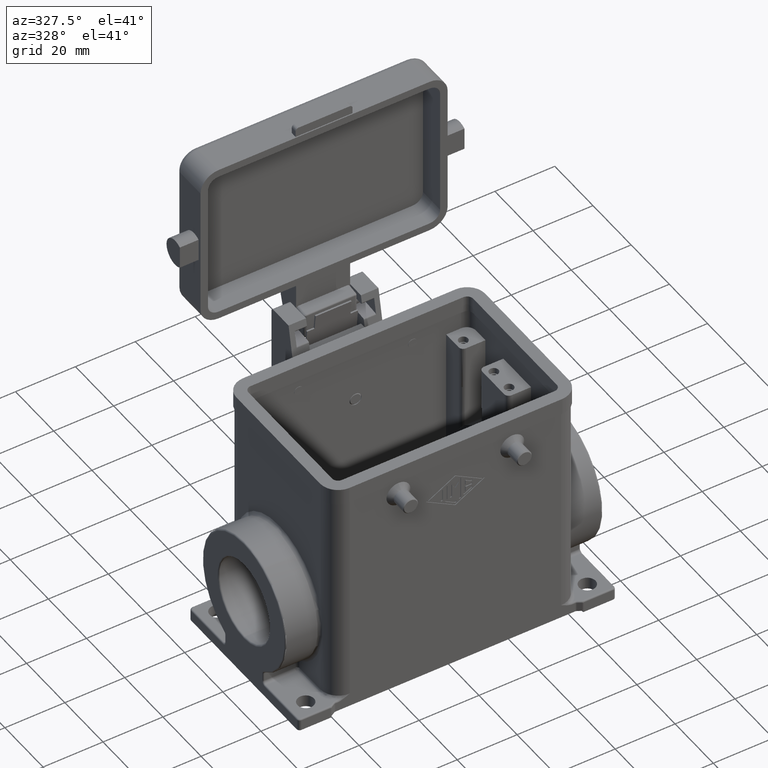
[diagram: clean part render]
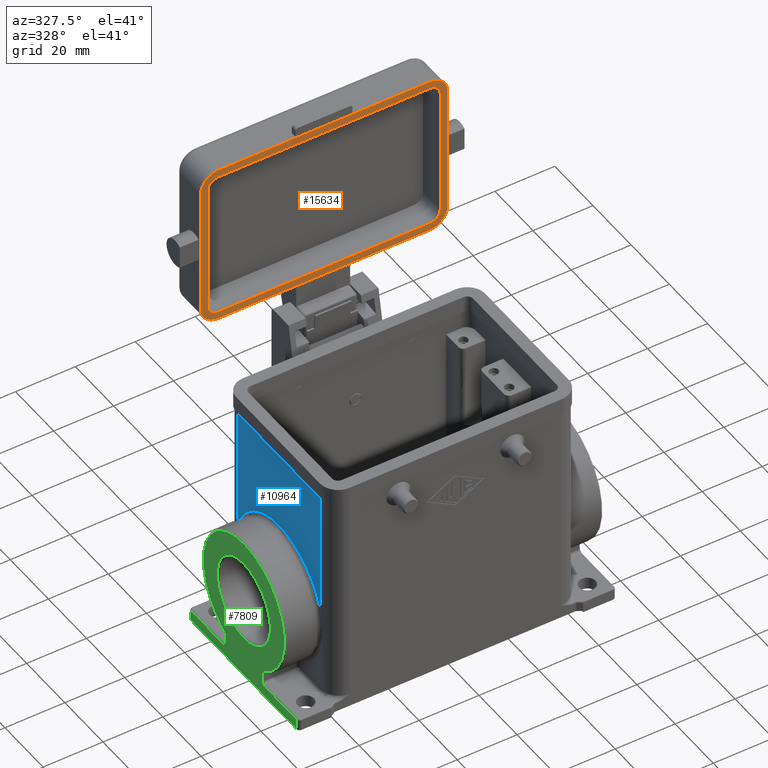
[diagram: same view with three faces highlighted in distinct colors, each labeled with its STEP entity id]
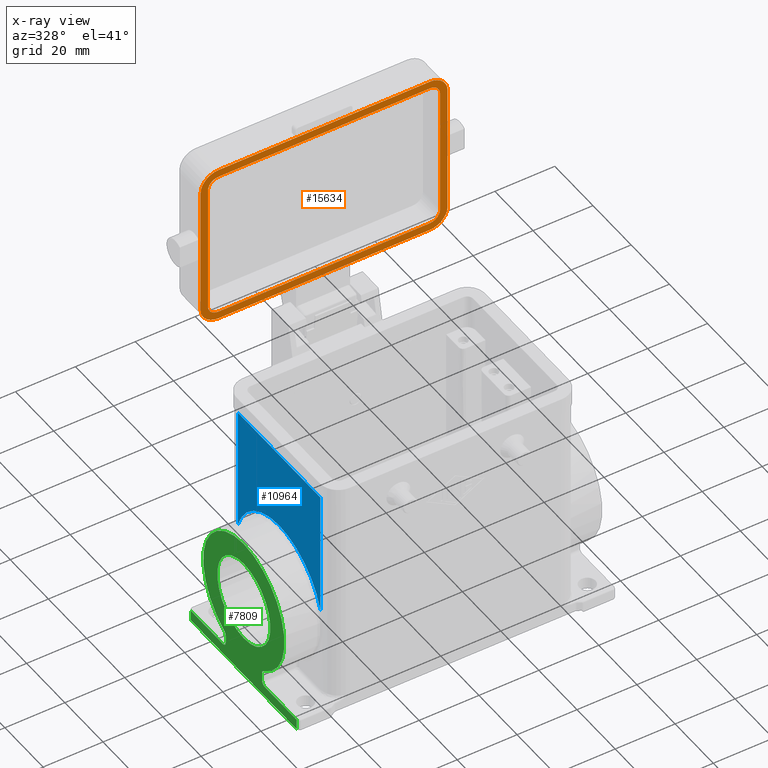
[diagram: x-ray of the same camera — body ghosted, the three highlighted faces saturated]
A machine part, auxiliary view with three faces highlighted in distinct colors.
The next image is the same camera in x-ray (body ghosted, the three faces saturated) — at least one of them is partly hidden behind the body in this view.
Their STEP definitions:

[orange] entity #15634 — the highlighted planar face has unit normal (0, 1, 0).
#14932=CARTESIAN_POINT('',(35.250000000000000,41.150000000000006,41.999999999999993));
#14933=VERTEX_POINT('',#14932);
#14940=CARTESIAN_POINT('',(-35.250000000000000,41.150000000000006,41.999999999999993));
#14941=VERTEX_POINT('',#14940);
#14942=CARTESIAN_POINT('',(-35.250000000000000,41.150000000000006,41.999999999999993));
#14943=DIRECTION('',(1.0,0.0,0.0));
#14944=VECTOR('',#14943,70.500000000000000);
#14945=LINE('',#14942,#14944);
#14946=EDGE_CURVE('',#14941,#14933,#14945,.T.);
#15168=CARTESIAN_POINT('',(41.250000000000000,41.150000000000006,47.999999999999986));
#15169=VERTEX_POINT('',#15168);
#15176=CARTESIAN_POINT('',(35.250000000000000,41.150000000000006,47.999999999999986));
#15177=DIRECTION('',(0.0,-1.0,0.0));
#15178=DIRECTION('',(-1.0,0.0,0.0));
#15179=AXIS2_PLACEMENT_3D('',#15176,#15177,#15178);
#15180=CIRCLE('',#15179,6.000000000000014);
#15181=EDGE_CURVE('',#14933,#15169,#15180,.T.);
#15193=CARTESIAN_POINT('',(41.250000000000000,41.150000000000006,91.299999999999983));
#15194=VERTEX_POINT('',#15193);
#15201=CARTESIAN_POINT('',(41.250000000000000,41.150000000000006,47.999999999999986));
#15202=DIRECTION('',(0.0,0.0,1.0));
#15203=VECTOR('',#15202,43.299999999999997);
#15204=LINE('',#15201,#15203);
#15205=EDGE_CURVE('',#15169,#15194,#15204,.T.);
#15248=CARTESIAN_POINT('',(35.250000000000000,41.150000000000006,44.499999999999993));
#15249=VERTEX_POINT('',#15248);
#15256=CARTESIAN_POINT('',(38.749999999999986,41.150000000000006,47.999999999999986));
#15257=VERTEX_POINT('',#15256);
#15258=CARTESIAN_POINT('',(35.250000000000000,41.150000000000013,47.999999999999986));
#15259=DIRECTION('',(0.0,1.0,0.0));
#15260=DIRECTION('',(-1.0,0.0,0.0));
#15261=AXIS2_PLACEMENT_3D('',#15258,#15259,#15260);
#15262=CIRCLE('',#15261,3.500000000000001);
#15263=EDGE_CURVE('',#15257,#15249,#15262,.T.);
#15287=CARTESIAN_POINT('',(-35.250000000000000,41.150000000000006,44.499999999999993));
#15288=VERTEX_POINT('',#15287);
#15295=CARTESIAN_POINT('',(35.250000000000000,41.150000000000006,44.499999999999993));
#15296=DIRECTION('',(-1.0,0.0,0.0));
#15297=VECTOR('',#15296,70.500000000000000);
#15298=LINE('',#15295,#15297);
#15299=EDGE_CURVE('',#15249,#15288,#15298,.T.);
#15319=CARTESIAN_POINT('',(-38.750000000000007,41.150000000000006,47.999999999999986));
#15320=VERTEX_POINT('',#15319);
#15327=CARTESIAN_POINT('',(-35.250000000000000,41.150000000000013,47.999999999999986));
#15328=DIRECTION('',(0.0,1.0,0.0));
#15329=DIRECTION('',(0.0,0.0,1.0));
#15330=AXIS2_PLACEMENT_3D('',#15327,#15328,#15329);
#15331=CIRCLE('',#15330,3.500000000000000);
#15332=EDGE_CURVE('',#15288,#15320,#15331,.T.);
#15351=CARTESIAN_POINT('',(-38.750000000000007,41.150000000000006,91.299999999999983));
#15352=VERTEX_POINT('',#15351);
#15359=CARTESIAN_POINT('',(-38.750000000000007,41.150000000000006,47.999999999999986));
#15360=DIRECTION('',(0.0,0.0,1.0));
#15361=VECTOR('',#15360,43.299999999999997);
#15362=LINE('',#15359,#15361);
#15363=EDGE_CURVE('',#15320,#15352,#15362,.T.);
#15383=CARTESIAN_POINT('',(38.749999999999972,41.150000000000006,91.299999999999983));
#15384=VERTEX_POINT('',#15383);
#15385=CARTESIAN_POINT('',(38.749999999999972,41.150000000000006,91.299999999999983));
#15386=DIRECTION('',(0.0,0.0,-1.0));
#15387=VECTOR('',#15386,43.299999999999997);
#15388=LINE('',#15385,#15387);
#15389=EDGE_CURVE('',#15384,#15257,#15388,.T.);
#15415=CARTESIAN_POINT('',(35.250000000000000,41.150000000000006,94.799999999999983));
#15416=VERTEX_POINT('',#15415);
#15417=CARTESIAN_POINT('',(35.250000000000000,41.150000000000013,91.299999999999983));
#15418=DIRECTION('',(0.0,1.0,0.0));
#15419=DIRECTION('',(0.0,0.0,-1.0));
#15420=AXIS2_PLACEMENT_3D('',#15417,#15418,#15419);
#15421=CIRCLE('',#15420,3.500000000000000);
#15422=EDGE_CURVE('',#15416,#15384,#15421,.T.);
#15447=CARTESIAN_POINT('',(-35.250000000000000,41.150000000000006,94.799999999999983));
#15448=VERTEX_POINT('',#15447);
#15449=CARTESIAN_POINT('',(-35.250000000000000,41.150000000000006,94.799999999999983));
#15450=DIRECTION('',(1.0,0.0,0.0));
#15451=VECTOR('',#15450,70.500000000000000);
#15452=LINE('',#15449,#15451);
#15453=EDGE_CURVE('',#15448,#15416,#15452,.T.);
#15477=CARTESIAN_POINT('',(-35.250000000000000,41.150000000000013,91.299999999999983));
#15478=DIRECTION('',(0.0,1.0,0.0));
#15479=DIRECTION('',(1.0,0.0,0.0));
#15480=AXIS2_PLACEMENT_3D('',#15477,#15478,#15479);
#15481=CIRCLE('',#15480,3.500000000000001);
#15482=EDGE_CURVE('',#15352,#15448,#15481,.T.);
#15494=CARTESIAN_POINT('',(35.250000000000000,41.150000000000006,97.299999999999983));
#15495=VERTEX_POINT('',#15494);
#15502=CARTESIAN_POINT('',(35.250000000000000,41.150000000000006,91.299999999999983));
#15503=DIRECTION('',(0.0,-1.0,0.0));
#15504=DIRECTION('',(0.0,0.0,-1.0));
#15505=AXIS2_PLACEMENT_3D('',#15502,#15503,#15504);
#15506=CIRCLE('',#15505,5.999999999999996);
#15507=EDGE_CURVE('',#15194,#15495,#15506,.T.);
#15519=CARTESIAN_POINT('',(-35.250000000000000,41.150000000000006,97.299999999999983));
#15520=VERTEX_POINT('',#15519);
#15527=CARTESIAN_POINT('',(35.250000000000000,41.150000000000006,97.299999999999983));
#15528=DIRECTION('',(-1.0,0.0,0.0));
#15529=VECTOR('',#15528,70.500000000000000);
#15530=LINE('',#15527,#15529);
#15531=EDGE_CURVE('',#15495,#15520,#15530,.T.);
#15543=CARTESIAN_POINT('',(-41.250000000000000,41.150000000000006,91.299999999999983));
#15544=VERTEX_POINT('',#15543);
#15551=CARTESIAN_POINT('',(-35.250000000000000,41.150000000000006,91.299999999999983));
#15552=DIRECTION('',(0.0,-1.0,0.0));
#15553=DIRECTION('',(1.0,0.0,0.0));
#15554=AXIS2_PLACEMENT_3D('',#15551,#15552,#15553);
#15555=CIRCLE('',#15554,6.000000000000005);
#15556=EDGE_CURVE('',#15520,#15544,#15555,.T.);
#15568=CARTESIAN_POINT('',(-41.250000000000000,41.150000000000006,47.999999999999986));
#15569=VERTEX_POINT('',#15568);
#15576=CARTESIAN_POINT('',(-41.250000000000000,41.150000000000006,91.299999999999983));
#15577=DIRECTION('',(0.0,0.0,-1.0));
#15578=VECTOR('',#15577,43.299999999999997);
#15579=LINE('',#15576,#15578);
#15580=EDGE_CURVE('',#15544,#15569,#15579,.T.);
#15598=CARTESIAN_POINT('',(-35.250000000000000,41.150000000000006,47.999999999999986));
#15599=DIRECTION('',(0.0,-1.0,0.0));
#15600=DIRECTION('',(0.0,0.0,1.0));
#15601=AXIS2_PLACEMENT_3D('',#15598,#15599,#15600);
#15602=CIRCLE('',#15601,6.000000000000005);
#15603=EDGE_CURVE('',#15569,#14941,#15602,.T.);
#15609=CARTESIAN_POINT('',(0.0,41.150000000000013,69.650000000000006));
#15610=DIRECTION('',(0.0,1.0,0.0));
#15611=DIRECTION('',(0.0,0.0,1.0));
#15612=AXIS2_PLACEMENT_3D('',#15609,#15610,#15611);
#15613=PLANE('',#15612);
#15614=ORIENTED_EDGE('',*,*,#15603,.T.);
#15615=ORIENTED_EDGE('',*,*,#14946,.T.);
#15616=ORIENTED_EDGE('',*,*,#15181,.T.);
#15617=ORIENTED_EDGE('',*,*,#15205,.T.);
#15618=ORIENTED_EDGE('',*,*,#15507,.T.);
#15619=ORIENTED_EDGE('',*,*,#15531,.T.);
#15620=ORIENTED_EDGE('',*,*,#15556,.T.);
#15621=ORIENTED_EDGE('',*,*,#15580,.T.);
#15622=EDGE_LOOP('',(#15614,#15615,#15616,#15617,#15618,#15619,#15620,#15621));
#15623=FACE_OUTER_BOUND('',#15622,.T.);
#15624=ORIENTED_EDGE('',*,*,#15389,.T.);
#15625=ORIENTED_EDGE('',*,*,#15263,.T.);
#15626=ORIENTED_EDGE('',*,*,#15299,.T.);
#15627=ORIENTED_EDGE('',*,*,#15332,.T.);
#15628=ORIENTED_EDGE('',*,*,#15363,.T.);
#15629=ORIENTED_EDGE('',*,*,#15482,.T.);
#15630=ORIENTED_EDGE('',*,*,#15453,.T.);
#15631=ORIENTED_EDGE('',*,*,#15422,.T.);
#15632=EDGE_LOOP('',(#15624,#15625,#15626,#15627,#15628,#15629,#15630,#15631));
#15633=FACE_BOUND('',#15632,.T.);
#15634=ADVANCED_FACE('',(#15623,#15633),#15613,.F.);

[blue] entity #10964 — the highlighted planar face has unit normal (-1, 0, 0).
#5055=CARTESIAN_POINT('',(-41.250000000000000,2.991101E-015,-2.250000000000007));
#5056=VERTEX_POINT('',#5055);
#5072=CARTESIAN_POINT('',(-41.249999999999986,-21.650000000000020,-18.011437916137609));
#5073=VERTEX_POINT('',#5072);
#5081=CARTESIAN_POINT('',(-41.250000000000000,2.051220E-016,-25.000000000000007));
#5082=DIRECTION('',(-1.0,0.0,0.0));
#5083=DIRECTION('',(0.0,0.0,1.0));
#5084=AXIS2_PLACEMENT_3D('',#5081,#5082,#5083);
#5085=CIRCLE('',#5084,22.750000000000000);
#5086=EDGE_CURVE('',#5073,#5056,#5085,.T.);
#10255=CARTESIAN_POINT('',(-41.250000000000007,21.649999999999999,-18.011437916137552));
#10256=VERTEX_POINT('',#10255);
#10257=CARTESIAN_POINT('',(-41.250000000000000,2.051220E-016,-25.000000000000007));
#10258=DIRECTION('',(-1.0,0.0,0.0));
#10259=DIRECTION('',(0.0,0.0,1.0));
#10260=AXIS2_PLACEMENT_3D('',#10257,#10258,#10259);
#10261=CIRCLE('',#10260,22.750000000000000);
#10262=EDGE_CURVE('',#5056,#10256,#10261,.T.);
#10921=CARTESIAN_POINT('',(-41.250000000000007,21.649999999999999,24.0));
#10922=VERTEX_POINT('',#10921);
#10923=CARTESIAN_POINT('',(-41.250000000000007,21.649999999999999,-18.011437916137552));
#10924=DIRECTION('',(0.0,0.0,1.0));
#10925=VECTOR('',#10924,42.011437916137552);
#10926=LINE('',#10923,#10925);
#10927=EDGE_CURVE('',#10256,#10922,#10926,.T.);
#10940=CARTESIAN_POINT('',(-41.250000000000000,-21.650000000000009,1.500000000000000));
#10941=DIRECTION('',(-1.0,0.0,0.0));
#10942=DIRECTION('',(0.0,0.0,1.0));
#10943=AXIS2_PLACEMENT_3D('',#10940,#10941,#10942);
#10944=PLANE('',#10943);
#10945=ORIENTED_EDGE('',*,*,#5086,.F.);
#10946=CARTESIAN_POINT('',(-41.250000000000000,-21.650000000000009,24.0));
#10947=VERTEX_POINT('',#10946);
#10948=CARTESIAN_POINT('',(-41.250000000000000,-21.650000000000009,24.0));
#10949=DIRECTION('',(0.0,0.0,-1.0));
#10950=VECTOR('',#10949,42.011437916137609);
#10951=LINE('',#10948,#10950);
#10952=EDGE_CURVE('',#10947,#5073,#10951,.T.);
#10953=ORIENTED_EDGE('',*,*,#10952,.F.);
#10954=CARTESIAN_POINT('',(-41.250000000000000,-21.650000000000009,24.0));
#10955=DIRECTION('',(0.0,1.0,0.0));
#10956=VECTOR('',#10955,43.300000000000011);
#10957=LINE('',#10954,#10956);
#10958=EDGE_CURVE('',#10947,#10922,#10957,.T.);
#10959=ORIENTED_EDGE('',*,*,#10958,.T.);
#10960=ORIENTED_EDGE('',*,*,#10927,.F.);
#10961=ORIENTED_EDGE('',*,*,#10262,.F.);
#10962=EDGE_LOOP('',(#10945,#10953,#10959,#10960,#10961));
#10963=FACE_OUTER_BOUND('',#10962,.T.);
#10964=ADVANCED_FACE('',(#10963),#10944,.T.);

[green] entity #7809 — the highlighted face is a freeform B-spline surface patch.
#4267=CARTESIAN_POINT('',(-53.0,-1.700978E-015,-38.890000000000008));
#4268=VERTEX_POINT('',#4267);
#4277=CARTESIAN_POINT('',(-53.0,3.401956E-015,-11.110000000000008));
#4278=VERTEX_POINT('',#4277);
#4286=CARTESIAN_POINT('',(-53.0,5.681879E-032,-25.000000000000007));
#4287=DIRECTION('',(-1.0,0.0,0.0));
#4288=DIRECTION('',(0.0,0.0,-1.0));
#4289=AXIS2_PLACEMENT_3D('',#4286,#4287,#4288);
#4290=CIRCLE('',#4289,13.890000000000001);
#4291=EDGE_CURVE('',#4278,#4268,#4290,.T.);
#6168=CARTESIAN_POINT('',(-52.999999999999986,27.650000000000002,-52.500000000000007));
#6169=VERTEX_POINT('',#6168);
#6177=CARTESIAN_POINT('',(-53.0,27.650000000000002,-49.000000000000014));
#6178=VERTEX_POINT('',#6177);
#6179=CARTESIAN_POINT('',(-52.999999999999986,27.650000000000002,-52.500000000000007));
#6180=DIRECTION('',(0.0,0.0,1.0));
#6181=VECTOR('',#6180,3.499999999999993);
#6182=LINE('',#6179,#6181);
#6183=EDGE_CURVE('',#6169,#6178,#6182,.T.);
#6551=CARTESIAN_POINT('',(-53.0,-2.602289E-015,-3.750000000000007));
#6552=VERTEX_POINT('',#6551);
#6567=CARTESIAN_POINT('',(-53.0,10.274725274725274,-43.600874187223617));
#6568=VERTEX_POINT('',#6567);
#6576=CARTESIAN_POINT('',(-53.0,5.681879E-032,-25.000000000000007));
#6577=DIRECTION('',(1.0,0.0,0.0));
#6578=DIRECTION('',(0.0,0.0,1.0));
#6579=AXIS2_PLACEMENT_3D('',#6576,#6577,#6578);
#6580=CIRCLE('',#6579,21.250000000000000);
#6581=EDGE_CURVE('',#6568,#6552,#6580,.T.);
#6650=CARTESIAN_POINT('',(-53.0,11.0,-49.000000000000014));
#6651=VERTEX_POINT('',#6650);
#6652=CARTESIAN_POINT('',(-53.0,27.650000000000002,-49.000000000000014));
#6653=DIRECTION('',(0.0,-1.0,0.0));
#6654=VECTOR('',#6653,16.650000000000002);
#6655=LINE('',#6652,#6654);
#6656=EDGE_CURVE('',#6178,#6651,#6655,.T.);
#7156=CARTESIAN_POINT('',(-53.0,9.500000000000002,-47.500000000000014));
#7157=VERTEX_POINT('',#7156);
#7176=CARTESIAN_POINT('',(-53.0,11.0,-47.500000000000014));
#7177=DIRECTION('',(-1.000000000000000,4.499896E-031,4.499896E-031));
#7178=DIRECTION('',(-6.363814E-031,-0.707106781186548,-0.707106781186548));
#7179=AXIS2_PLACEMENT_3D('',#7176,#7177,#7178);
#7180=CIRCLE('',#7179,1.500000000000000);
#7181=EDGE_CURVE('',#6651,#7157,#7180,.T.);
#7193=CARTESIAN_POINT('',(-53.0,9.500000000000000,-44.913877071027635));
#7194=VERTEX_POINT('',#7193);
#7195=CARTESIAN_POINT('',(-53.0,9.500000000000002,-47.500000000000014));
#7196=DIRECTION('',(0.0,0.0,1.0));
#7197=VECTOR('',#7196,2.586122928972380);
#7198=LINE('',#7195,#7197);
#7199=EDGE_CURVE('',#7157,#7194,#7198,.T.);
#7227=CARTESIAN_POINT('',(-53.0,10.999999999999998,-44.913877071027635));
#7228=DIRECTION('',(-1.0,-2.598647E-031,1.533308E-031));
#7229=DIRECTION('',(3.017283E-031,-0.861253877644822,0.508174928781181));
#7230=AXIS2_PLACEMENT_3D('',#7227,#7228,#7229);
#7231=CIRCLE('',#7230,1.500000000000000);
#7232=EDGE_CURVE('',#7194,#6568,#7231,.T.);
#7243=CARTESIAN_POINT('',(-53.0,-10.274725274725265,-43.600874187223617));
#7244=VERTEX_POINT('',#7243);
#7245=CARTESIAN_POINT('',(-53.0,5.681879E-032,-25.000000000000007));
#7246=DIRECTION('',(1.0,0.0,0.0));
#7247=DIRECTION('',(0.0,0.0,1.0));
#7248=AXIS2_PLACEMENT_3D('',#7245,#7246,#7247);
#7249=CIRCLE('',#7248,21.250000000000000);
#7250=EDGE_CURVE('',#6552,#7244,#7249,.T.);
#7275=CARTESIAN_POINT('',(-53.0,-9.499999999999991,-44.913877071027642));
#7276=VERTEX_POINT('',#7275);
#7294=CARTESIAN_POINT('',(-53.0,-10.999999999999993,-44.913877071027642));
#7295=DIRECTION('',(-1.000000000000000,4.284479E-031,2.528017E-031));
#7296=DIRECTION('',(4.974699E-031,0.861253877644821,0.508174928781182));
#7297=AXIS2_PLACEMENT_3D('',#7294,#7295,#7296);
#7298=CIRCLE('',#7297,1.500000000000000);
#7299=EDGE_CURVE('',#7244,#7276,#7298,.T.);
#7311=CARTESIAN_POINT('',(-53.0,-9.499999999999995,-47.500000000000014));
#7312=VERTEX_POINT('',#7311);
#7313=CARTESIAN_POINT('',(-53.0,-9.499999999999991,-44.913877071027642));
#7314=DIRECTION('',(0.0,0.0,-1.0));
#7315=VECTOR('',#7314,2.586122928972372);
#7316=LINE('',#7313,#7315);
#7317=EDGE_CURVE('',#7276,#7312,#7316,.T.);
#7334=CARTESIAN_POINT('',(-53.0,-10.999999999999995,-49.000000000000021));
#7335=VERTEX_POINT('',#7334);
#7354=CARTESIAN_POINT('',(-53.0,-10.999999999999995,-47.500000000000014));
#7355=DIRECTION('',(-1.000000000000000,-3.363521E-031,3.363521E-031));
#7356=DIRECTION('',(-4.756736E-031,0.707106781186548,-0.707106781186548));
#7357=AXIS2_PLACEMENT_3D('',#7354,#7355,#7356);
#7358=CIRCLE('',#7357,1.500000000000000);
#7359=EDGE_CURVE('',#7312,#7335,#7358,.T.);
#7371=CARTESIAN_POINT('',(-53.0,-27.650000000000002,-49.000000000000014));
#7372=VERTEX_POINT('',#7371);
#7373=CARTESIAN_POINT('',(-53.0,-10.999999999999995,-49.000000000000021));
#7374=DIRECTION('',(0.0,-1.0,0.0));
#7375=VECTOR('',#7374,16.650000000000006);
#7376=LINE('',#7373,#7375);
#7377=EDGE_CURVE('',#7335,#7372,#7376,.T.);
#7756=CARTESIAN_POINT('',(-53.000000000000028,-27.650000000000006,-52.500000000000007));
#7757=VERTEX_POINT('',#7756);
#7758=CARTESIAN_POINT('',(-53.0,-27.650000000000002,-49.000000000000014));
#7759=DIRECTION('',(0.0,0.0,-1.0));
#7760=VECTOR('',#7759,3.499999999999993);
#7761=LINE('',#7758,#7760);
#7762=EDGE_CURVE('',#7372,#7757,#7761,.T.);
#7774=CARTESIAN_POINT('',(-53.0,27.650000000000002,-3.750000000000007));
#7775=CARTESIAN_POINT('',(-53.0,27.650000000000002,-52.500000000000007));
#7776=CARTESIAN_POINT('',(-53.0,-27.650000000000009,-3.750000000000007));
#7777=CARTESIAN_POINT('',(-53.0,-27.650000000000009,-52.500000000000007));
#7778=B_SPLINE_SURFACE_WITH_KNOTS('',1,1,((#7774,#7776),(#7775,#7777)),.UNSPECIFIED.,.F.,.F.,.U.,(2,2),(2,2),(0.0,48.750000000000000),(0.0,55.300000000000011),.UNSPECIFIED.);
#7779=ORIENTED_EDGE('',*,*,#7377,.F.);
#7780=ORIENTED_EDGE('',*,*,#7359,.F.);
#7781=ORIENTED_EDGE('',*,*,#7317,.F.);
#7782=ORIENTED_EDGE('',*,*,#7299,.F.);
#7783=ORIENTED_EDGE('',*,*,#7250,.F.);
#7784=ORIENTED_EDGE('',*,*,#6581,.F.);
#7785=ORIENTED_EDGE('',*,*,#7232,.F.);
#7786=ORIENTED_EDGE('',*,*,#7199,.F.);
#7787=ORIENTED_EDGE('',*,*,#7181,.F.);
#7788=ORIENTED_EDGE('',*,*,#6656,.F.);
#7789=ORIENTED_EDGE('',*,*,#6183,.F.);
#7790=CARTESIAN_POINT('',(-52.999999999999986,27.650000000000002,-52.500000000000007));
#7791=DIRECTION('',(0.0,-1.0,0.0));
#7792=VECTOR('',#7791,55.300000000000011);
#7793=LINE('',#7790,#7792);
#7794=EDGE_CURVE('',#6169,#7757,#7793,.T.);
#7795=ORIENTED_EDGE('',*,*,#7794,.T.);
#7796=ORIENTED_EDGE('',*,*,#7762,.F.);
#7797=EDGE_LOOP('',(#7779,#7780,#7781,#7782,#7783,#7784,#7785,#7786,#7787,#7788,#7789,#7795,#7796));
#7798=FACE_OUTER_BOUND('',#7797,.T.);
#7799=ORIENTED_EDGE('',*,*,#4291,.F.);
#7800=CARTESIAN_POINT('',(-53.0,5.681879E-032,-25.000000000000007));
#7801=DIRECTION('',(-1.0,0.0,0.0));
#7802=DIRECTION('',(0.0,0.0,-1.0));
#7803=AXIS2_PLACEMENT_3D('',#7800,#7801,#7802);
#7804=CIRCLE('',#7803,13.890000000000001);
#7805=EDGE_CURVE('',#4268,#4278,#7804,.T.);
#7806=ORIENTED_EDGE('',*,*,#7805,.F.);
#7807=EDGE_LOOP('',(#7799,#7806));
#7808=FACE_BOUND('',#7807,.T.);
#7809=ADVANCED_FACE('',(#7798,#7808),#7778,.T.);